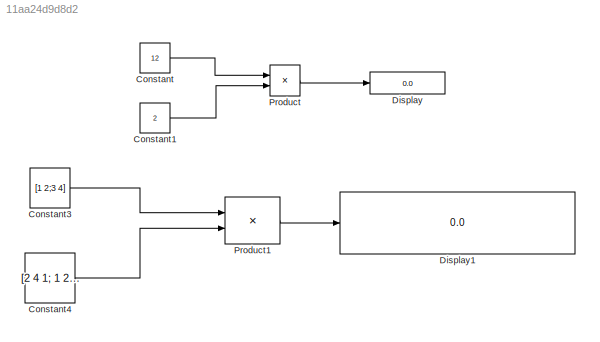
MODEL slx_11aa24d9d8d2
KIND model
CONFIG AbsTol = auto
CONFIG EnableMultiTasking = off
CONFIG FixedStep = auto
CONFIG MaxStep = auto
CONFIG MinStep = auto
CONFIG RelTol = 1e-3
CONFIG SampleTimeConstraint = Unconstrained
CONFIG Solver = VariableStepAuto
CONFIG SolverName = VariableStepAuto
CONFIG StartTime = 0.0
CONFIG StopTime = 10.0
BLOCK [Constant] Constant
  Value = 12
BLOCK [Constant] Constant1
  Value = 2
BLOCK [Constant] Constant3
  Value = [1 2;3 4]
BLOCK [Constant] Constant4
  Value = [2 4 1; 1 2 2]
BLOCK [Display] Display
  Decimation = 1
  Ports = [1]
BLOCK [Display] Display1
  Decimation = 1
  Ports = [1]
BLOCK [Product] Product
  Ports = [2, 1]
BLOCK [Product] Product1
  Multiplication = Matrix(*)
  Ports = [2, 1]
LINE Constant1:1 -> Product:2
LINE Constant3:1 -> Product1:1
LINE Constant4:1 -> Product1:2
LINE Constant:1 -> Product:1
LINE Product1:1 -> Display1:1
LINE Product:1 -> Display:1
